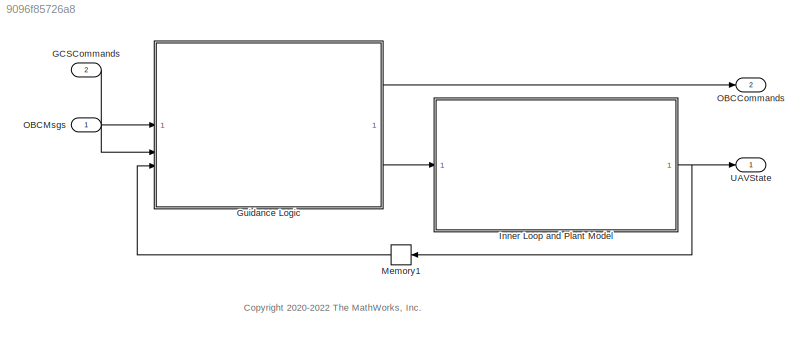
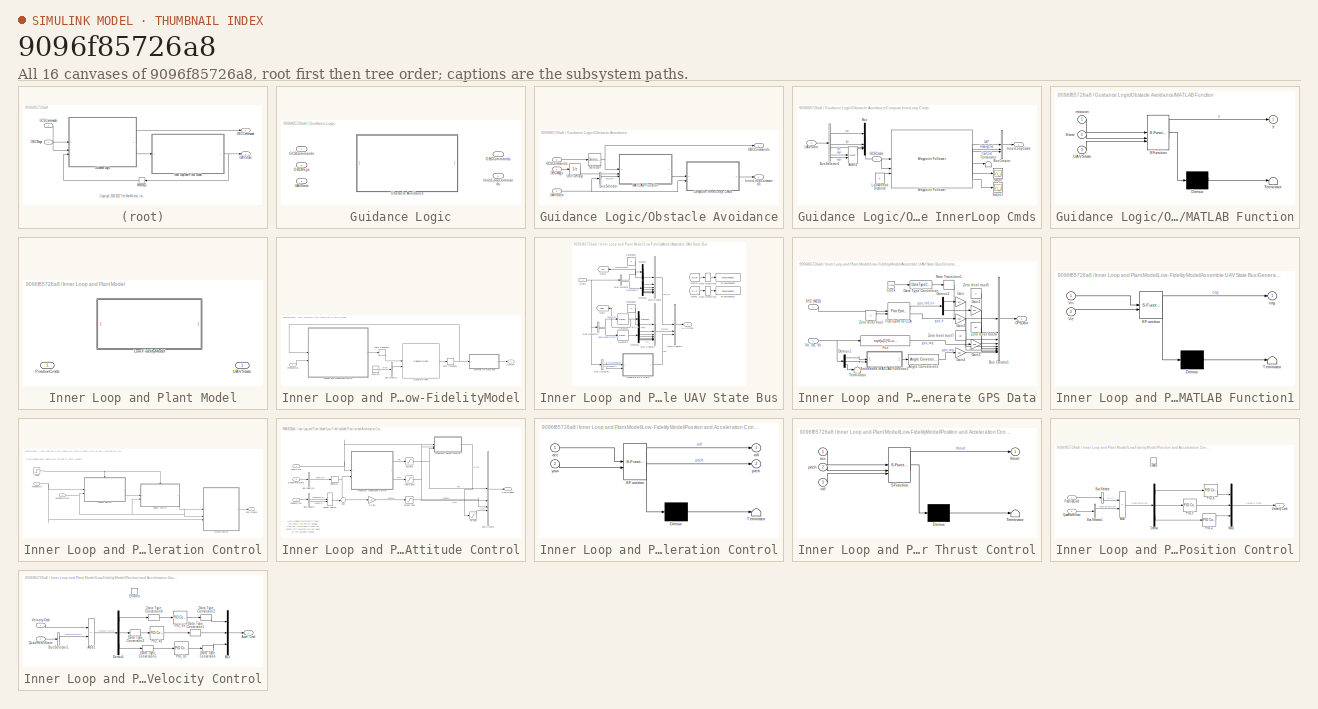
[diagram: thumbnail index - all 16 canvases of the model, root first then tree order]
MODEL slx_9096f85726a8
KIND model
CONFIG AbsTol = auto
CONFIG EnableMultiTasking = on
CONFIG FixedStep = 0.005
CONFIG MaxStep = auto
CONFIG MinStep = auto
CONFIG RelTol = 1e-3
CONFIG SampleTimeConstraint = Unconstrained
CONFIG SolverName = VariableStepAuto
CONFIG StartTime = 0.0
CONFIG StopTime = 200
BLOCK [Inport] GCSCommands
  BusOutputAsStruct = on
  OutDataTypeStr = Bus: uavPathManagerBus
  Port = 2
  PortDimensions = 42
  SampleTime = UAVSampleTime*4
  SamplingMode = Sample based
  SignalType = real
BLOCK [SubSystem] Guidance Logic
  AllowZeroVariantControls = on
  Variant = on
BLOCK [Inport] Guidance Logic/GCSCommands
BLOCK [Outport] Guidance Logic/InnerLoopCommands
  Port = 2
BLOCK [Outport] Guidance Logic/OBCCommands
  BusOutputAsStruct = on
  SampleTime = 0.005
BLOCK [Inport] Guidance Logic/OBCMsgs
  Port = 2
BLOCK [SubSystem] Guidance Logic/Obstacle Avoidance
  SystemSampleTime = 0.005*4
  TreatAsAtomicUnit = on
  VariantControl = guidanceType ==2
BLOCK [BusSelector] Guidance Logic/Obstacle Avoidance/Bus Selector
  NameLocation = top
  OutputSignals = pos_vel
BLOCK [SubSystem] Guidance Logic/Obstacle Avoidance/Compute InnerLoop Cmds
  TreatAsAtomicUnit = on
BLOCK [Trigonometry] Guidance Logic/Obstacle Avoidance/Compute InnerLoop Cmds/Atan2
  Operator = atan2
BLOCK [BusCreator] Guidance Logic/Obstacle Avoidance/Compute InnerLoop Cmds/Bus Creator
  DisplayOption = bar
  InheritFromInputs = on
  Inputs = 3
  NonVirtualBus = on
  OutDataTypeStr = Bus: innerLoopCmdsBus
BLOCK [BusSelector] Guidance Logic/Obstacle Avoidance/Compute InnerLoop Cmds/Bus Selector1
  NameLocation = top
  OutputSignals = pos_vel.x,pos_vel.y,pos_vel.z,pos_vel.vy,pos_vel.vx
BLOCK [Inport] Guidance Logic/Obstacle Avoidance/Compute InnerLoop Cmds/GCSCmds
BLOCK [Outport] Guidance Logic/Obstacle Avoidance/Compute InnerLoop Cmds/InnerLoopCmds
  OutDataTypeStr = Bus: innerLoopCmdsBus
BLOCK [Constant] Guidance Logic/Obstacle Avoidance/Compute InnerLoop Cmds/Lookahead Distance
  OutDataTypeStr = single
  Value = 5
BLOCK [Mux] Guidance Logic/Obstacle Avoidance/Compute InnerLoop Cmds/Mux
  DisplayOption = bar
BLOCK [Scope] Guidance Logic/Obstacle Avoidance/Compute InnerLoop Cmds/Scope
  Floating = off
  NumInputPorts = 1
  ScopeSpecificationString = Simulink.scopes.TimeScopeBlockCfg('CurrentConfiguration', extmgr.ConfigurationSet(extmgr.Configuration('Core','General UI',true),extmgr.Configuration('Core','Source UI',true),extmgr.Configuration('Sources','WiredSimulink',true),extmgr.Configuration('Visuals','Time Domain',true,'SerializedDisplays',{struct('MinYLimReal','-1.3181','MaxYLimReal','14.08417','YLabelReal','','MinYLimMag','0.00000','MaxY...<+1376ch>
BLOCK [Scope] Guidance Logic/Obstacle Avoidance/Compute InnerLoop Cmds/Scope1
  Floating = off
  NumInputPorts = 1
  ScopeSpecificationString = Simulink.scopes.TimeScopeBlockCfg('CurrentConfiguration', extmgr.ConfigurationSet(extmgr.Configuration('Core','General UI',true),extmgr.Configuration('Core','Source UI',true),extmgr.Configuration('Sources','WiredSimulink',true,'DataLoggingVariableName','ScopeData1'),extmgr.Configuration('Visuals','Time Domain',true,'SerializedDisplays',{struct('MinYLimReal','-1.45913','MaxYLimReal','14.08434','YLa...<+1436ch>
BLOCK [Terminator] Guidance Logic/Obstacle Avoidance/Compute InnerLoop Cmds/Terminator
BLOCK [Inport] Guidance Logic/Obstacle Avoidance/Compute InnerLoop Cmds/UAVState
  Port = 2
BLOCK [Reference] Guidance Logic/Obstacle Avoidance/Compute InnerLoop Cmds/Waypoint Follower  REF=uavalgslib/Waypoint Follower
  SourceBlock = uavalgslib/Waypoint Follower
  SourceType = uav.sluav.internal.system.WaypointFollower
BLOCK [Inport] Guidance Logic/Obstacle Avoidance/GCSCommands
BLOCK [Outport] Guidance Logic/Obstacle Avoidance/InnerLoopCommands
BLOCK [SubSystem] Guidance Logic/Obstacle Avoidance/MATLAB Function
  ErrorFcn = Stateflow.Translate.translate
  PermitHierarchicalResolution = ExplicitOnly
  SFBlockType = MATLAB Function
  TreatAsAtomicUnit = on
BLOCK [Demux] Guidance Logic/Obstacle Avoidance/MATLAB Function/ Demux 
  Outputs = 1
BLOCK [S-Function] Guidance Logic/Obstacle Avoidance/MATLAB Function/ SFunction 
  EnableBusSupport = on
  FunctionName = sf_sfun
  PortCounts = [3 2]
  SFcnIsStateOwnerBlock = off
  SFunctionDeploymentMode = off
  Tag = Stateflow S-Function 9
BLOCK [Terminator] Guidance Logic/Obstacle Avoidance/MATLAB Function/ Terminator 
BLOCK [Inport] Guidance Logic/Obstacle Avoidance/MATLAB Function/Steer
  Port = 2
BLOCK [Inport] Guidance Logic/Obstacle Avoidance/MATLAB Function/UAVState
  Port = 3
BLOCK [Inport] Guidance Logic/Obstacle Avoidance/MATLAB Function/mission
BLOCK [Outport] Guidance Logic/Obstacle Avoidance/MATLAB Function/y
BLOCK [Outport] Guidance Logic/Obstacle Avoidance/OBCCommands
  BusOutputAsStruct = on
  Port = 2
BLOCK [Inport] Guidance Logic/Obstacle Avoidance/OBCMsgs
  Port = 2
BLOCK [Selector] Guidance Logic/Obstacle Avoidance/Selector
  IndexOptions = Index vector (dialog)
  Indices = [1 2]
  InputPortWidth = 42
  OutputSizes = 1
BLOCK [Inport] Guidance Logic/Obstacle Avoidance/UAVState
  Port = 3
BLOCK [UnitDelay] Guidance Logic/Obstacle Avoidance/Unit Delay1
  HasFrameUpgradeWarning = on
  InitialCondition = single(0)
  SampleTime = -1
BLOCK [Inport] Guidance Logic/UAVState
  Port = 3
BLOCK [SubSystem] Inner Loop and Plant Model
  Variant = on
BLOCK [SubSystem] Inner Loop and Plant Model/Low-FidelityModel
  VariantControl = plantModelFi ==0
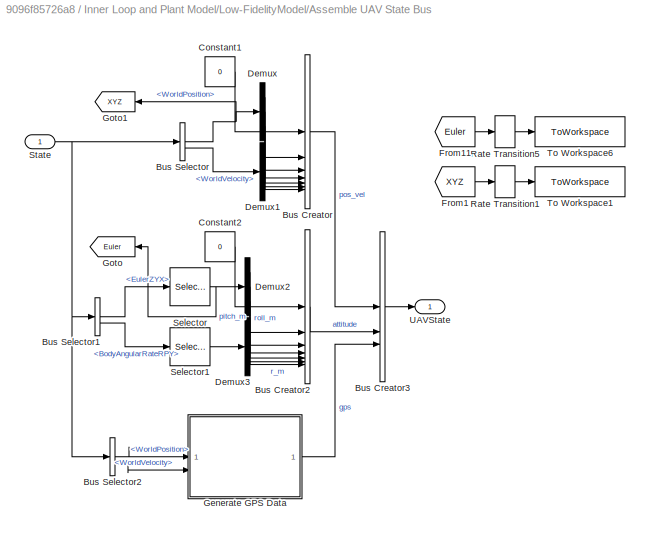
BLOCK [SubSystem] Inner Loop and Plant Model/Low-FidelityModel/Assemble UAV State Bus
BLOCK [BusCreator] Inner Loop and Plant Model/Low-FidelityModel/Assemble UAV State Bus/Bus Creator
  DisplayOption = bar
  InheritFromInputs = off
  Inputs = 7
  OutDataTypeStr = Bus: local_position_ned
BLOCK [BusCreator] Inner Loop and Plant Model/Low-FidelityModel/Assemble UAV State Bus/Bus Creator2
  DisplayOption = bar
  InheritFromInputs = off
  Inputs = 7
  OutDataTypeStr = Bus: attitudeBus
BLOCK [BusCreator] Inner Loop and Plant Model/Low-FidelityModel/Assemble UAV State Bus/Bus Creator3
  DisplayOption = bar
  InheritFromInputs = off
  Inputs = 3
  OutDataTypeStr = Bus: uavStateBus
BLOCK [BusSelector] Inner Loop and Plant Model/Low-FidelityModel/Assemble UAV State Bus/Bus Selector
  OutputSignals = WorldPosition,WorldVelocity
BLOCK [BusSelector] Inner Loop and Plant Model/Low-FidelityModel/Assemble UAV State Bus/Bus Selector1
  OutputSignals = EulerZYX,BodyAngularRateRPY
BLOCK [BusSelector] Inner Loop and Plant Model/Low-FidelityModel/Assemble UAV State Bus/Bus Selector2
  OutputSignals = WorldPosition,WorldVelocity
BLOCK [Constant] Inner Loop and Plant Model/Low-FidelityModel/Assemble UAV State Bus/Constant1
  OutDataTypeStr = uint32
  Value = 0
BLOCK [Constant] Inner Loop and Plant Model/Low-FidelityModel/Assemble UAV State Bus/Constant2
  OutDataTypeStr = uint32
  Value = 0
BLOCK [Demux] Inner Loop and Plant Model/Low-FidelityModel/Assemble UAV State Bus/Demux
  Outputs = 3
BLOCK [Demux] Inner Loop and Plant Model/Low-FidelityModel/Assemble UAV State Bus/Demux1
  Outputs = 3
BLOCK [Demux] Inner Loop and Plant Model/Low-FidelityModel/Assemble UAV State Bus/Demux2
  Outputs = 3
BLOCK [Demux] Inner Loop and Plant Model/Low-FidelityModel/Assemble UAV State Bus/Demux3
  Outputs = 3
BLOCK [From] Inner Loop and Plant Model/Low-FidelityModel/Assemble UAV State Bus/From1
  Commented = on
  GotoTag = XYZ
BLOCK [From] Inner Loop and Plant Model/Low-FidelityModel/Assemble UAV State Bus/From11
  Commented = on
  GotoTag = Euler
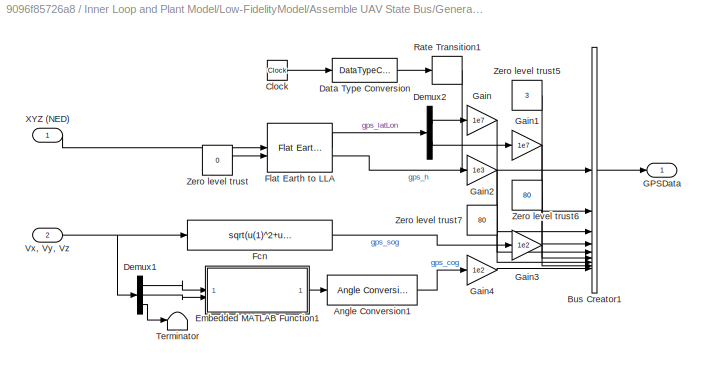
BLOCK [SubSystem] Inner Loop and Plant Model/Low-FidelityModel/Assemble UAV State Bus/Generate GPS Data
BLOCK [Reference] Inner Loop and Plant Model/Low-FidelityModel/Assemble UAV State Bus/Generate GPS Data/Angle Conversion1  REF=aerolibconvert2/Angle Conversion
  SourceBlock = aerolibconvert2/Angle Conversion
  SourceType = Angle Conversion
BLOCK [BusCreator] Inner Loop and Plant Model/Low-FidelityModel/Assemble UAV State Bus/Generate GPS Data/Bus Creator1
  DisplayOption = bar
  InheritFromInputs = off
  Inputs = 9
  NonVirtualBus = on
  OutDataTypeStr = Bus: gps_raw_int
BLOCK [Clock] Inner Loop and Plant Model/Low-FidelityModel/Assemble UAV State Bus/Generate GPS Data/Clock
  AttributesFormatString = Decimation: %<Decimation>
  Decimation = 1
BLOCK [DataTypeConversion] Inner Loop and Plant Model/Low-FidelityModel/Assemble UAV State Bus/Generate GPS Data/Data Type Conversion
  OutDataTypeStr = uint32
  RndMeth = Floor
  SaturateOnIntegerOverflow = off
BLOCK [Demux] Inner Loop and Plant Model/Low-FidelityModel/Assemble UAV State Bus/Generate GPS Data/Demux1
  Outputs = 3
BLOCK [Demux] Inner Loop and Plant Model/Low-FidelityModel/Assemble UAV State Bus/Generate GPS Data/Demux2
  Outputs = 2
BLOCK [SubSystem] Inner Loop and Plant Model/Low-FidelityModel/Assemble UAV State Bus/Generate GPS Data/Embedded MATLAB Function1
  ErrorFcn = Stateflow.Translate.translate
  PermitHierarchicalResolution = ExplicitOnly
  SFBlockType = MATLAB Function
  TreatAsAtomicUnit = on
BLOCK [Demux] Inner Loop and Plant Model/Low-FidelityModel/Assemble UAV State Bus/Generate GPS Data/Embedded MATLAB Function1/ Demux 
  Outputs = 1
BLOCK [S-Function] Inner Loop and Plant Model/Low-FidelityModel/Assemble UAV State Bus/Generate GPS Data/Embedded MATLAB Function1/ SFunction 
  EnableBusSupport = on
  FunctionName = sf_sfun
  PortCounts = [2 2]
  SFcnIsStateOwnerBlock = off
  SFunctionDeploymentMode = off
  Tag = Stateflow S-Function 8
BLOCK [Terminator] Inner Loop and Plant Model/Low-FidelityModel/Assemble UAV State Bus/Generate GPS Data/Embedded MATLAB Function1/ Terminator 
BLOCK [Inport] Inner Loop and Plant Model/Low-FidelityModel/Assemble UAV State Bus/Generate GPS Data/Embedded MATLAB Function1/Ve
  Port = 2
BLOCK [Inport] Inner Loop and Plant Model/Low-FidelityModel/Assemble UAV State Bus/Generate GPS Data/Embedded MATLAB Function1/Vn
BLOCK [Outport] Inner Loop and Plant Model/Low-FidelityModel/Assemble UAV State Bus/Generate GPS Data/Embedded MATLAB Function1/cog
  VectorParamsAs1DForOutWhenUnconnected = off
BLOCK [Fcn] Inner Loop and Plant Model/Low-FidelityModel/Assemble UAV State Bus/Generate GPS Data/Fcn
  Expr = sqrt(u(1)^2+u(2)^2+u(3)^2)
BLOCK [Reference] Inner Loop and Plant Model/Low-FidelityModel/Assemble UAV State Bus/Generate GPS Data/Flat Earth to LLA  REF=aerolibtransform2/Flat Earth to LLA
  SourceBlock = aerolibtransform2/Flat Earth to LLA
  SourceType = Flat Earth to LLA
BLOCK [Outport] Inner Loop and Plant Model/Low-FidelityModel/Assemble UAV State Bus/Generate GPS Data/GPSData
  VectorParamsAs1DForOutWhenUnconnected = off
BLOCK [Gain] Inner Loop and Plant Model/Low-FidelityModel/Assemble UAV State Bus/Generate GPS Data/Gain
  Gain = 1e7
  OutDataTypeStr = int32
BLOCK [Gain] Inner Loop and Plant Model/Low-FidelityModel/Assemble UAV State Bus/Generate GPS Data/Gain1
  Gain = 1e7
  OutDataTypeStr = int32
BLOCK [Gain] Inner Loop and Plant Model/Low-FidelityModel/Assemble UAV State Bus/Generate GPS Data/Gain2
  Gain = 1e3
  OutDataTypeStr = int32
BLOCK [Gain] Inner Loop and Plant Model/Low-FidelityModel/Assemble UAV State Bus/Generate GPS Data/Gain3
  Gain = 1e2
  OutDataTypeStr = uint16
BLOCK [Gain] Inner Loop and Plant Model/Low-FidelityModel/Assemble UAV State Bus/Generate GPS Data/Gain4
  Gain = 1e2
  OutDataTypeStr = uint16
BLOCK [RateTransition] Inner Loop and Plant Model/Low-FidelityModel/Assemble UAV State Bus/Generate GPS Data/Rate Transition1
  OutPortSampleTime = 0.005
BLOCK [Terminator] Inner Loop and Plant Model/Low-FidelityModel/Assemble UAV State Bus/Generate GPS Data/Terminator
BLOCK [Inport] Inner Loop and Plant Model/Low-FidelityModel/Assemble UAV State Bus/Generate GPS Data/Vx, Vy, Vz
  Port = 2
BLOCK [Inport] Inner Loop and Plant Model/Low-FidelityModel/Assemble UAV State Bus/Generate GPS Data/XYZ (NED)
BLOCK [Constant] Inner Loop and Plant Model/Low-FidelityModel/Assemble UAV State Bus/Generate GPS Data/Zero level trust
  AttributesFormatString = %<Value>
  Value = 0
BLOCK [Constant] Inner Loop and Plant Model/Low-FidelityModel/Assemble UAV State Bus/Generate GPS Data/Zero level trust5
  AttributesFormatString = %<Value>
  OutDataTypeStr = uint8
  Value = 3
BLOCK [Constant] Inner Loop and Plant Model/Low-FidelityModel/Assemble UAV State Bus/Generate GPS Data/Zero level trust6
  AttributesFormatString = %<Value>
  OutDataTypeStr = uint16
  Value = 80
BLOCK [Constant] Inner Loop and Plant Model/Low-FidelityModel/Assemble UAV State Bus/Generate GPS Data/Zero level trust7
  AttributesFormatString = %<Value>
  OutDataTypeStr = uint16
  Value = 80
BLOCK [Goto] Inner Loop and Plant Model/Low-FidelityModel/Assemble UAV State Bus/Goto
  Commented = on
  GotoTag = Euler
BLOCK [Goto] Inner Loop and Plant Model/Low-FidelityModel/Assemble UAV State Bus/Goto1
  Commented = on
  GotoTag = XYZ
BLOCK [RateTransition] Inner Loop and Plant Model/Low-FidelityModel/Assemble UAV State Bus/Rate Transition1
  Commented = on
  OutPortSampleTime = UAVSampleTime
BLOCK [RateTransition] Inner Loop and Plant Model/Low-FidelityModel/Assemble UAV State Bus/Rate Transition5
  Commented = on
  OutPortSampleTime = UAVSampleTime
BLOCK [Selector] Inner Loop and Plant Model/Low-FidelityModel/Assemble UAV State Bus/Selector
  IndexOptions = Index vector (dialog)
  Indices = [3 2 1]
  InputPortWidth = 3
  OutputSizes = 1
BLOCK [Selector] Inner Loop and Plant Model/Low-FidelityModel/Assemble UAV State Bus/Selector1
  IndexOptions = Index vector (dialog)
  Indices = [3 2 1]
  InputPortWidth = 3
  OutputSizes = 1
BLOCK [Inport] Inner Loop and Plant Model/Low-FidelityModel/Assemble UAV State Bus/State
BLOCK [ToWorkspace] Inner Loop and Plant Model/Low-FidelityModel/Assemble UAV State Bus/To Workspace1
  Commented = on
  FixptAsFi = on
  MaxDataPoints = inf
  SampleTime = -1
  SaveFormat = Timeseries
  VariableName = XYZ
BLOCK [ToWorkspace] Inner Loop and Plant Model/Low-FidelityModel/Assemble UAV State Bus/To Workspace6
  Commented = on
  FixptAsFi = on
  MaxDataPoints = inf
  SampleTime = -1
  SaveFormat = Timeseries
  VariableName = euler
BLOCK [Outport] Inner Loop and Plant Model/Low-FidelityModel/Assemble UAV State Bus/UAVState
  OutDataTypeStr = Bus: uavStateBus
BLOCK [BusCreator] Inner Loop and Plant Model/Low-FidelityModel/Bus Creator1
  DisplayOption = bar
  InheritFromInputs = on
  Inputs = 1
  NonVirtualBus = on
  OutDataTypeStr = Bus: uavGuidanceEnvironmentBus
BLOCK [Constant] Inner Loop and Plant Model/Low-FidelityModel/Constant
  AttributesFormatString = %<Value>
  OutDataTypeStr = single
  Value = Gravity
BLOCK [SubSystem] Inner Loop and Plant Model/Low-FidelityModel/Position and Acceleration Control
BLOCK [SubSystem] Inner Loop and Plant Model/Low-FidelityModel/Position and Acceleration Control/Attitude Control
BLOCK [Inport] Inner Loop and Plant Model/Low-FidelityModel/Position and Acceleration Control/Attitude Control/Accel Cmd
BLOCK [BusCreator] Inner Loop and Plant Model/Low-FidelityModel/Position and Acceleration Control/Attitude Control/Bus Creator
  DisplayOption = bar
  InheritFromInputs = off
  Inputs = 4
  NonVirtualBus = on
  OutDataTypeStr = Bus: uavGuidanceControlBus
BLOCK [BusSelector] Inner Loop and Plant Model/Low-FidelityModel/Position and Acceleration Control/Attitude Control/Bus Selector
  OutputSignals = HeadingCmd,YawCmd
BLOCK [BusSelector] Inner Loop and Plant Model/Low-FidelityModel/Position and Acceleration Control/Attitude Control/Bus Selector1
  NameLocation = top
  OutputSignals = EulerZYX
BLOCK [Outport] Inner Loop and Plant Model/Low-FidelityModel/Position and Acceleration Control/Attitude Control/Control Signal
BLOCK [SubSystem] Inner Loop and Plant Model/Low-FidelityModel/Position and Acceleration Control/Attitude Control/Multirotor Acceleration Control
  ErrorFcn = Stateflow.Translate.translate
  PermitHierarchicalResolution = ExplicitOnly
  SFBlockType = MATLAB Function
  TreatAsAtomicUnit = on
BLOCK [Demux] Inner Loop and Plant Model/Low-FidelityModel/Position and Acceleration Control/Attitude Control/Multirotor Acceleration Control/ Demux 
  Outputs = 1
BLOCK [S-Function] Inner Loop and Plant Model/Low-FidelityModel/Position and Acceleration Control/Attitude Control/Multirotor Acceleration Control/ SFunction 
  EnableBusSupport = on
  FunctionName = sf_sfun
  Parameters = Gravity
  PortCounts = [2 3]
  SFcnIsStateOwnerBlock = off
  SFunctionDeploymentMode = off
  Tag = Stateflow S-Function 11
BLOCK [Terminator] Inner Loop and Plant Model/Low-FidelityModel/Position and Acceleration Control/Attitude Control/Multirotor Acceleration Control/ Terminator 
BLOCK [Inport] Inner Loop and Plant Model/Low-FidelityModel/Position and Acceleration Control/Attitude Control/Multirotor Acceleration Control/acc
BLOCK [Outport] Inner Loop and Plant Model/Low-FidelityModel/Position and Acceleration Control/Attitude Control/Multirotor Acceleration Control/pitch
  Port = 2
  VectorParamsAs1DForOutWhenUnconnected = off
BLOCK [Outport] Inner Loop and Plant Model/Low-FidelityModel/Position and Acceleration Control/Attitude Control/Multirotor Acceleration Control/roll
  VectorParamsAs1DForOutWhenUnconnected = off
BLOCK [Inport] Inner Loop and Plant Model/Low-FidelityModel/Position and Acceleration Control/Attitude Control/Multirotor Acceleration Control/yaw
  Port = 2
BLOCK [SubSystem] Inner Loop and Plant Model/Low-FidelityModel/Position and Acceleration Control/Attitude Control/Multirotor Thrust Control
  ErrorFcn = Stateflow.Translate.translate
  PermitHierarchicalResolution = ExplicitOnly
  SFBlockType = MATLAB Function
  TreatAsAtomicUnit = on
BLOCK [Demux] Inner Loop and Plant Model/Low-FidelityModel/Position and Acceleration Control/Attitude Control/Multirotor Thrust Control/ Demux 
  Outputs = 1
BLOCK [S-Function] Inner Loop and Plant Model/Low-FidelityModel/Position and Acceleration Control/Attitude Control/Multirotor Thrust Control/ SFunction 
  EnableBusSupport = on
  FunctionName = sf_sfun
  Parameters = DroneMass,Gravity
  PortCounts = [3 2]
  SFcnIsStateOwnerBlock = off
  SFunctionDeploymentMode = off
  Tag = Stateflow S-Function 12
BLOCK [Terminator] Inner Loop and Plant Model/Low-FidelityModel/Position and Acceleration Control/Attitude Control/Multirotor Thrust Control/ Terminator 
BLOCK [Inport] Inner Loop and Plant Model/Low-FidelityModel/Position and Acceleration Control/Attitude Control/Multirotor Thrust Control/acc
BLOCK [Inport] Inner Loop and Plant Model/Low-FidelityModel/Position and Acceleration Control/Attitude Control/Multirotor Thrust Control/pitch
  Port = 2
BLOCK [Inport] Inner Loop and Plant Model/Low-FidelityModel/Position and Acceleration Control/Attitude Control/Multirotor Thrust Control/roll
  Port = 3
BLOCK [Outport] Inner Loop and Plant Model/Low-FidelityModel/Position and Acceleration Control/Attitude Control/Multirotor Thrust Control/thrust
  VectorParamsAs1DForOutWhenUnconnected = off
BLOCK [Gain] Inner Loop and Plant Model/Low-FidelityModel/Position and Acceleration Control/Attitude Control/P Gain
  Gain = 1.1
BLOCK [Inport] Inner Loop and Plant Model/Low-FidelityModel/Position and Acceleration Control/Attitude Control/PositionCmd
  Port = 3
BLOCK [Inport] Inner Loop and Plant Model/Low-FidelityModel/Position and Acceleration Control/Attitude Control/QuadRotorState
  Port = 2
BLOCK [Selector] Inner Loop and Plant Model/Low-FidelityModel/Position and Acceleration Control/Attitude Control/Selector1
  IndexOptions = Index vector (dialog)
  Indices = [1]
  InputPortWidth = 3
  OutputSizes = 1
BLOCK [Sum] Inner Loop and Plant Model/Low-FidelityModel/Position and Acceleration Control/Attitude Control/Sum
  Inputs = -+|
BLOCK [VariantSource] Inner Loop and Plant Model/Low-FidelityModel/Position and Acceleration Control/Attitude Control/Variant Source
BLOCK [Saturate] Inner Loop and Plant Model/Low-FidelityModel/Position and Acceleration Control/Attitude Control/dT Limit
  AttributesFormatString = [%<UpperLimit> %<LowerLimit>]
  LowerLimit = 0
  UpperLimit = 1.2
BLOCK [Saturate] Inner Loop and Plant Model/Low-FidelityModel/Position and Acceleration Control/Attitude Control/phi Limit
  AttributesFormatString = [%<UpperLimit> %<LowerLimit>]
  LowerLimit = -25*pi/180
  UpperLimit = 25*pi/180
BLOCK [Saturate] Inner Loop and Plant Model/Low-FidelityModel/Position and Acceleration Control/Attitude Control/psi_dot Limit
  AttributesFormatString = [%<UpperLimit> %<LowerLimit>]
  LowerLimit = -30*pi/180
  UpperLimit = 30*pi/180
BLOCK [Saturate] Inner Loop and Plant Model/Low-FidelityModel/Position and Acceleration Control/Attitude Control/theta Limit
  AttributesFormatString = [%<UpperLimit> %<LowerLimit>]
  LowerLimit = -25*pi/180
  UpperLimit = 25*pi/180
BLOCK [Outport] Inner Loop and Plant Model/Low-FidelityModel/Position and Acceleration Control/Control Signal
BLOCK [SubSystem] Inner Loop and Plant Model/Low-FidelityModel/Position and Acceleration Control/Position Control
BLOCK [Sum] Inner Loop and Plant Model/Low-FidelityModel/Position and Acceleration Control/Position Control/Add
  IconShape = rectangular
  Inputs = +-
BLOCK [BusSelector] Inner Loop and Plant Model/Low-FidelityModel/Position and Acceleration Control/Position Control/Bus Selector
  OutputSignals = LAP
BLOCK [BusSelector] Inner Loop and Plant Model/Low-FidelityModel/Position and Acceleration Control/Position Control/Bus Selector1
  NameLocation = top
  OutputSignals = WorldPosition
BLOCK [Demux] Inner Loop and Plant Model/Low-FidelityModel/Position and Acceleration Control/Position Control/Demux
  Outputs = 3
BLOCK [EnablePort] Inner Loop and Plant Model/Low-FidelityModel/Position and Acceleration Control/Position Control/Enable
  StatesWhenEnabling = reset
BLOCK [Mux] Inner Loop and Plant Model/Low-FidelityModel/Position and Acceleration Control/Position Control/Mux1
  DisplayOption = bar
  Inputs = 3
BLOCK [Reference] Inner Loop and Plant Model/Low-FidelityModel/Position and Acceleration Control/Position Control/PID_X  REF=slpidlib/PID Controller
  AttributesFormatString = P: %<P>, I: %<I>, D:%<D>
  SourceBlock = slpidlib/PID Controller
  SourceType = PID 1dof
BLOCK [Reference] Inner Loop and Plant Model/Low-FidelityModel/Position and Acceleration Control/Position Control/PID_Y  REF=slpidlib/PID Controller
  AttributesFormatString = P: %<P>, I: %<I>, D:%<D>
  SourceBlock = slpidlib/PID Controller
  SourceType = PID 1dof
BLOCK [Reference] Inner Loop and Plant Model/Low-FidelityModel/Position and Acceleration Control/Position Control/PID_Z  REF=slpidlib/PID Controller
  AttributesFormatString = P: %<P>, I: %<I>, D:%<D>
  SourceBlock = slpidlib/PID Controller
  SourceType = PID 1dof
BLOCK [Inport] Inner Loop and Plant Model/Low-FidelityModel/Position and Acceleration Control/Position Control/PositionCmd
BLOCK [Inport] Inner Loop and Plant Model/Low-FidelityModel/Position and Acceleration Control/Position Control/QuadRotorState
  Port = 2
BLOCK [Outport] Inner Loop and Plant Model/Low-FidelityModel/Position and Acceleration Control/Position Control/Velocity Cmd
BLOCK [Inport] Inner Loop and Plant Model/Low-FidelityModel/Position and Acceleration Control/PositionCmd
  Port = 2
BLOCK [Inport] Inner Loop and Plant Model/Low-FidelityModel/Position and Acceleration Control/QuadRotorState
BLOCK [Step] Inner Loop and Plant Model/Low-FidelityModel/Position and Acceleration Control/Step
  SampleTime = UAVSampleTime
  Time = startFlightTime
BLOCK [SubSystem] Inner Loop and Plant Model/Low-FidelityModel/Position and Acceleration Control/Velocity Control
BLOCK [Outport] Inner Loop and Plant Model/Low-FidelityModel/Position and Acceleration Control/Velocity Control/Accel Cmd
BLOCK [Sum] Inner Loop and Plant Model/Low-FidelityModel/Position and Acceleration Control/Velocity Control/Add1
  IconShape = rectangular
  Inputs = +-
BLOCK [BusSelector] Inner Loop and Plant Model/Low-FidelityModel/Position and Acceleration Control/Velocity Control/Bus Selector1
  NameLocation = top
  OutputSignals = WorldVelocity
BLOCK [DataTypeConversion] Inner Loop and Plant Model/Low-FidelityModel/Position and Acceleration Control/Velocity Control/Data Type Conversion
  OutDataTypeStr = single
  RndMeth = Floor
  SaturateOnIntegerOverflow = off
BLOCK [DataTypeConversion] Inner Loop and Plant Model/Low-FidelityModel/Position and Acceleration Control/Velocity Control/Data Type Conversion1
  OutDataTypeStr = single
  RndMeth = Floor
  SaturateOnIntegerOverflow = off
BLOCK [DataTypeConversion] Inner Loop and Plant Model/Low-FidelityModel/Position and Acceleration Control/Velocity Control/Data Type Conversion2
  OutDataTypeStr = single
  RndMeth = Floor
  SaturateOnIntegerOverflow = off
BLOCK [DataTypeConversion] Inner Loop and Plant Model/Low-FidelityModel/Position and Acceleration Control/Velocity Control/Data Type Conversion3
  OutDataTypeStr = single
  RndMeth = Floor
  SaturateOnIntegerOverflow = off
BLOCK [DataTypeConversion] Inner Loop and Plant Model/Low-FidelityModel/Position and Acceleration Control/Velocity Control/Data Type Conversion4
  OutDataTypeStr = single
  RndMeth = Floor
  SaturateOnIntegerOverflow = off
BLOCK [DataTypeConversion] Inner Loop and Plant Model/Low-FidelityModel/Position and Acceleration Control/Velocity Control/Data Type Conversion5
  OutDataTypeStr = single
  RndMeth = Floor
  SaturateOnIntegerOverflow = off
BLOCK [Demux] Inner Loop and Plant Model/Low-FidelityModel/Position and Acceleration Control/Velocity Control/Demux1
  Outputs = 3
BLOCK [EnablePort] Inner Loop and Plant Model/Low-FidelityModel/Position and Acceleration Control/Velocity Control/Enable
  StatesWhenEnabling = reset
BLOCK [Mux] Inner Loop and Plant Model/Low-FidelityModel/Position and Acceleration Control/Velocity Control/Mux
  DisplayOption = bar
  Inputs = 3
BLOCK [Reference] Inner Loop and Plant Model/Low-FidelityModel/Position and Acceleration Control/Velocity Control/PID_Vx  REF=slpidlib/PID Controller
  AttributesFormatString = P: %<P>, I: %<I>, D:%<D>
  SourceBlock = slpidlib/PID Controller
  SourceType = PID 1dof
BLOCK [Reference] Inner Loop and Plant Model/Low-FidelityModel/Position and Acceleration Control/Velocity Control/PID_Vy  REF=slpidlib/PID Controller
  AttributesFormatString = P: %<P>, I: %<I>, D:%<D>
  SourceBlock = slpidlib/PID Controller
  SourceType = PID 1dof
BLOCK [Reference] Inner Loop and Plant Model/Low-FidelityModel/Position and Acceleration Control/Velocity Control/PID_Vz  REF=slpidlib/PID Controller
  AttributesFormatString = P: %<P>, I: %<I>, D:%<D>
  SourceBlock = slpidlib/PID Controller
  SourceType = PID 1dof
BLOCK [Inport] Inner Loop and Plant Model/Low-FidelityModel/Position and Acceleration Control/Velocity Control/QuadRotorState
  Port = 2
BLOCK [Inport] Inner Loop and Plant Model/Low-FidelityModel/Position and Acceleration Control/Velocity Control/Velocity Cmd
BLOCK [Inport] Inner Loop and Plant Model/Low-FidelityModel/PositionCmds
BLOCK [Reference] Inner Loop and Plant Model/Low-FidelityModel/Quadrotor Plant  REF=uavalgslib/Guidance Model
  SourceBlock = uavalgslib/Guidance Model
  SourceType = Guidance Model
BLOCK [RateTransition] Inner Loop and Plant Model/Low-FidelityModel/Rate Transition1
  OutPortSampleTime = UAVSampleTime
BLOCK [RateTransition] Inner Loop and Plant Model/Low-FidelityModel/Rate Transition2
  OutPortSampleTime = UAVSampleTime
BLOCK [Outport] Inner Loop and Plant Model/Low-FidelityModel/UAVState
  OutDataTypeStr = Bus: uavStateBus
BLOCK [Inport] Inner Loop and Plant Model/PositionCmds
BLOCK [Outport] Inner Loop and Plant Model/UAVState
BLOCK [Memory] Memory1
  InheritSampleTime = on
BLOCK [Outport] OBCCommands
  BusOutputAsStruct = on
  OutDataTypeStr = Bus: uavPathManagerBus
  Port = 2
  PortDimensions = 2
  SampleTime = 0.005
BLOCK [Inport] OBCMsgs
  OutDataTypeStr = single
  SampleTime = UAVSampleTime*4
  SamplingMode = Sample based
  SignalType = real
BLOCK [Outport] UAVState
  BusOutputAsStruct = on
  OutDataTypeStr = Bus: uavStateBus
ANNOTATION (root): <copyright redacted>
ANNOTATION Inner Loop and Plant Model/Low-FidelityModel/Position and Acceleration Control: To be replaced with a signal from the GCS to "Start Mission"
ANNOTATION Inner Loop and Plant Model/Low-FidelityModel/Position and Acceleration Control/Attitude Control: Use Heading Command to have the copter turn into its heading. Use Yaw Command to have the copter turn towards the yaw given by the Waypoint Mission
LINE GCSCommands:1 -> Guidance Logic:1
LINE Guidance Logic/Obstacle Avoidance/Bus Selector:1 -> Guidance Logic/Obstacle Avoidance/MATLAB Function:3
LINE Guidance Logic/Obstacle Avoidance/Compute InnerLoop Cmds/Atan2:1 -> Guidance Logic/Obstacle Avoidance/Compute InnerLoop Cmds/Mux:4
LINE Guidance Logic/Obstacle Avoidance/Compute InnerLoop Cmds/Bus Creator:1 -> Guidance Logic/Obstacle Avoidance/Compute InnerLoop Cmds/InnerLoopCmds:1
LINE Guidance Logic/Obstacle Avoidance/Compute InnerLoop Cmds/Bus Selector1:1 -> Guidance Logic/Obstacle Avoidance/Compute InnerLoop Cmds/Mux:1
LINE Guidance Logic/Obstacle Avoidance/Compute InnerLoop Cmds/Bus Selector1:2 -> Guidance Logic/Obstacle Avoidance/Compute InnerLoop Cmds/Mux:2
LINE Guidance Logic/Obstacle Avoidance/Compute InnerLoop Cmds/Bus Selector1:3 -> Guidance Logic/Obstacle Avoidance/Compute InnerLoop Cmds/Mux:3
LINE Guidance Logic/Obstacle Avoidance/Compute InnerLoop Cmds/Bus Selector1:4 -> Guidance Logic/Obstacle Avoidance/Compute InnerLoop Cmds/Atan2:1
LINE Guidance Logic/Obstacle Avoidance/Compute InnerLoop Cmds/Bus Selector1:5 -> Guidance Logic/Obstacle Avoidance/Compute InnerLoop Cmds/Atan2:2
LINE Guidance Logic/Obstacle Avoidance/Compute InnerLoop Cmds/GCSCmds:1 -> Guidance Logic/Obstacle Avoidance/Compute InnerLoop Cmds/Waypoint Follower:2
LINE Guidance Logic/Obstacle Avoidance/Compute InnerLoop Cmds/Lookahead Distance:1 -> Guidance Logic/Obstacle Avoidance/Compute InnerLoop Cmds/Waypoint Follower:3
LINE Guidance Logic/Obstacle Avoidance/Compute InnerLoop Cmds/Mux:1 -> Guidance Logic/Obstacle Avoidance/Compute InnerLoop Cmds/Waypoint Follower:1
LINE Guidance Logic/Obstacle Avoidance/Compute InnerLoop Cmds/UAVState:1 -> Guidance Logic/Obstacle Avoidance/Compute InnerLoop Cmds/Bus Selector1:1
LINE Guidance Logic/Obstacle Avoidance/Compute InnerLoop Cmds/Waypoint Follower:1 -> Guidance Logic/Obstacle Avoidance/Compute InnerLoop Cmds/Bus Creator:1
LINE Guidance Logic/Obstacle Avoidance/Compute InnerLoop Cmds/Waypoint Follower:2 -> Guidance Logic/Obstacle Avoidance/Compute InnerLoop Cmds/Bus Creator:2
LINE Guidance Logic/Obstacle Avoidance/Compute InnerLoop Cmds/Waypoint Follower:3 -> Guidance Logic/Obstacle Avoidance/Compute InnerLoop Cmds/Bus Creator:3
LINE Guidance Logic/Obstacle Avoidance/Compute InnerLoop Cmds/Waypoint Follower:4 -> Guidance Logic/Obstacle Avoidance/Compute InnerLoop Cmds/Terminator:1
LINE Guidance Logic/Obstacle Avoidance/Compute InnerLoop Cmds/Waypoint Follower:5 -> Guidance Logic/Obstacle Avoidance/Compute InnerLoop Cmds/Scope:1
LINE Guidance Logic/Obstacle Avoidance/Compute InnerLoop Cmds/Waypoint Follower:6 -> Guidance Logic/Obstacle Avoidance/Compute InnerLoop Cmds/Scope1:1
LINE Guidance Logic/Obstacle Avoidance/Compute InnerLoop Cmds:1 -> Guidance Logic/Obstacle Avoidance/InnerLoopCommands:1
LINE Guidance Logic/Obstacle Avoidance/GCSCommands:1 -> Guidance Logic/Obstacle Avoidance/Selector:1
LINE Guidance Logic/Obstacle Avoidance/MATLAB Function:1 -> Guidance Logic/Obstacle Avoidance/Compute InnerLoop Cmds:1
LINE Guidance Logic/Obstacle Avoidance/OBCMsgs:1 -> Guidance Logic/Obstacle Avoidance/Unit Delay1:1
NET Guidance Logic/Obstacle Avoidance/Selector:1 -> Guidance Logic/Obstacle Avoidance/MATLAB Function:1, Guidance Logic/Obstacle Avoidance/OBCCommands:1
NET Guidance Logic/Obstacle Avoidance/UAVState:1 -> Guidance Logic/Obstacle Avoidance/Bus Selector:1, Guidance Logic/Obstacle Avoidance/Compute InnerLoop Cmds:2
LINE Guidance Logic/Obstacle Avoidance/Unit Delay1:1 -> Guidance Logic/Obstacle Avoidance/MATLAB Function:2
LINE Guidance Logic:1 -> OBCCommands:1
LINE Guidance Logic:2 -> Inner Loop and Plant Model:1
LINE Inner Loop and Plant Model/Low-FidelityModel/Assemble UAV State Bus/Bus Creator2:1 -> Inner Loop and Plant Model/Low-FidelityModel/Assemble UAV State Bus/Bus Creator3:2
LINE Inner Loop and Plant Model/Low-FidelityModel/Assemble UAV State Bus/Bus Creator3:1 -> Inner Loop and Plant Model/Low-FidelityModel/Assemble UAV State Bus/UAVState:1
LINE Inner Loop and Plant Model/Low-FidelityModel/Assemble UAV State Bus/Bus Creator:1 -> Inner Loop and Plant Model/Low-FidelityModel/Assemble UAV State Bus/Bus Creator3:1
LINE Inner Loop and Plant Model/Low-FidelityModel/Assemble UAV State Bus/Bus Selector1:1 -> Inner Loop and Plant Model/Low-FidelityModel/Assemble UAV State Bus/Selector:1
LINE Inner Loop and Plant Model/Low-FidelityModel/Assemble UAV State Bus/Bus Selector1:2 -> Inner Loop and Plant Model/Low-FidelityModel/Assemble UAV State Bus/Selector1:1
LINE Inner Loop and Plant Model/Low-FidelityModel/Assemble UAV State Bus/Bus Selector2:1 -> Inner Loop and Plant Model/Low-FidelityModel/Assemble UAV State Bus/Generate GPS Data:1
LINE Inner Loop and Plant Model/Low-FidelityModel/Assemble UAV State Bus/Bus Selector2:2 -> Inner Loop and Plant Model/Low-FidelityModel/Assemble UAV State Bus/Generate GPS Data:2
NET Inner Loop and Plant Model/Low-FidelityModel/Assemble UAV State Bus/Bus Selector:1 -> Inner Loop and Plant Model/Low-FidelityModel/Assemble UAV State Bus/Demux:1, Inner Loop and Plant Model/Low-FidelityModel/Assemble UAV State Bus/Goto1:1
LINE Inner Loop and Plant Model/Low-FidelityModel/Assemble UAV State Bus/Bus Selector:2 -> Inner Loop and Plant Model/Low-FidelityModel/Assemble UAV State Bus/Demux1:1
LINE Inner Loop and Plant Model/Low-FidelityModel/Assemble UAV State Bus/Constant1:1 -> Inner Loop and Plant Model/Low-FidelityModel/Assemble UAV State Bus/Bus Creator:1
LINE Inner Loop and Plant Model/Low-FidelityModel/Assemble UAV State Bus/Constant2:1 -> Inner Loop and Plant Model/Low-FidelityModel/Assemble UAV State Bus/Bus Creator2:1
LINE Inner Loop and Plant Model/Low-FidelityModel/Assemble UAV State Bus/Demux1:1 -> Inner Loop and Plant Model/Low-FidelityModel/Assemble UAV State Bus/Bus Creator:5
LINE Inner Loop and Plant Model/Low-FidelityModel/Assemble UAV State Bus/Demux1:2 -> Inner Loop and Plant Model/Low-FidelityModel/Assemble UAV State Bus/Bus Creator:6
LINE Inner Loop and Plant Model/Low-FidelityModel/Assemble UAV State Bus/Demux1:3 -> Inner Loop and Plant Model/Low-FidelityModel/Assemble UAV State Bus/Bus Creator:7
LINE Inner Loop and Plant Model/Low-FidelityModel/Assemble UAV State Bus/Demux2:1 -> Inner Loop and Plant Model/Low-FidelityModel/Assemble UAV State Bus/Bus Creator2:2
LINE Inner Loop and Plant Model/Low-FidelityModel/Assemble UAV State Bus/Demux2:2 -> Inner Loop and Plant Model/Low-FidelityModel/Assemble UAV State Bus/Bus Creator2:3
LINE Inner Loop and Plant Model/Low-FidelityModel/Assemble UAV State Bus/Demux2:3 -> Inner Loop and Plant Model/Low-FidelityModel/Assemble UAV State Bus/Bus Creator2:4
LINE Inner Loop and Plant Model/Low-FidelityModel/Assemble UAV State Bus/Demux3:1 -> Inner Loop and Plant Model/Low-FidelityModel/Assemble UAV State Bus/Bus Creator2:5
LINE Inner Loop and Plant Model/Low-FidelityModel/Assemble UAV State Bus/Demux3:2 -> Inner Loop and Plant Model/Low-FidelityModel/Assemble UAV State Bus/Bus Creator2:6
LINE Inner Loop and Plant Model/Low-FidelityModel/Assemble UAV State Bus/Demux3:3 -> Inner Loop and Plant Model/Low-FidelityModel/Assemble UAV State Bus/Bus Creator2:7
LINE Inner Loop and Plant Model/Low-FidelityModel/Assemble UAV State Bus/Demux:1 -> Inner Loop and Plant Model/Low-FidelityModel/Assemble UAV State Bus/Bus Creator:2
LINE Inner Loop and Plant Model/Low-FidelityModel/Assemble UAV State Bus/Demux:2 -> Inner Loop and Plant Model/Low-FidelityModel/Assemble UAV State Bus/Bus Creator:3
LINE Inner Loop and Plant Model/Low-FidelityModel/Assemble UAV State Bus/Demux:3 -> Inner Loop and Plant Model/Low-FidelityModel/Assemble UAV State Bus/Bus Creator:4
LINE Inner Loop and Plant Model/Low-FidelityModel/Assemble UAV State Bus/From11:1 -> Inner Loop and Plant Model/Low-FidelityModel/Assemble UAV State Bus/Rate Transition5:1
LINE Inner Loop and Plant Model/Low-FidelityModel/Assemble UAV State Bus/From1:1 -> Inner Loop and Plant Model/Low-FidelityModel/Assemble UAV State Bus/Rate Transition1:1
LINE Inner Loop and Plant Model/Low-FidelityModel/Assemble UAV State Bus/Generate GPS Data/Angle Conversion1:1 -> Inner Loop and Plant Model/Low-FidelityModel/Assemble UAV State Bus/Generate GPS Data/Gain4:1
LINE Inner Loop and Plant Model/Low-FidelityModel/Assemble UAV State Bus/Generate GPS Data/Bus Creator1:1 -> Inner Loop and Plant Model/Low-FidelityModel/Assemble UAV State Bus/Generate GPS Data/GPSData:1
LINE Inner Loop and Plant Model/Low-FidelityModel/Assemble UAV State Bus/Generate GPS Data/Clock:1 -> Inner Loop and Plant Model/Low-FidelityModel/Assemble UAV State Bus/Generate GPS Data/Data Type Conversion:1
LINE Inner Loop and Plant Model/Low-FidelityModel/Assemble UAV State Bus/Generate GPS Data/Data Type Conversion:1 -> Inner Loop and Plant Model/Low-FidelityModel/Assemble UAV State Bus/Generate GPS Data/Rate Transition1:1
LINE Inner Loop and Plant Model/Low-FidelityModel/Assemble UAV State Bus/Generate GPS Data/Demux1:1 -> Inner Loop and Plant Model/Low-FidelityModel/Assemble UAV State Bus/Generate GPS Data/Embedded MATLAB Function1:1
LINE Inner Loop and Plant Model/Low-FidelityModel/Assemble UAV State Bus/Generate GPS Data/Demux1:2 -> Inner Loop and Plant Model/Low-FidelityModel/Assemble UAV State Bus/Generate GPS Data/Embedded MATLAB Function1:2
LINE Inner Loop and Plant Model/Low-FidelityModel/Assemble UAV State Bus/Generate GPS Data/Demux1:3 -> Inner Loop and Plant Model/Low-FidelityModel/Assemble UAV State Bus/Generate GPS Data/Terminator:1
LINE Inner Loop and Plant Model/Low-FidelityModel/Assemble UAV State Bus/Generate GPS Data/Demux2:1 -> Inner Loop and Plant Model/Low-FidelityModel/Assemble UAV State Bus/Generate GPS Data/Gain:1
LINE Inner Loop and Plant Model/Low-FidelityModel/Assemble UAV State Bus/Generate GPS Data/Demux2:2 -> Inner Loop and Plant Model/Low-FidelityModel/Assemble UAV State Bus/Generate GPS Data/Gain1:1
LINE Inner Loop and Plant Model/Low-FidelityModel/Assemble UAV State Bus/Generate GPS Data/Embedded MATLAB Function1:1 -> Inner Loop and Plant Model/Low-FidelityModel/Assemble UAV State Bus/Generate GPS Data/Angle Conversion1:1
LINE Inner Loop and Plant Model/Low-FidelityModel/Assemble UAV State Bus/Generate GPS Data/Fcn:1 -> Inner Loop and Plant Model/Low-FidelityModel/Assemble UAV State Bus/Generate GPS Data/Gain3:1
LINE Inner Loop and Plant Model/Low-FidelityModel/Assemble UAV State Bus/Generate GPS Data/Flat Earth to LLA:1 -> Inner Loop and Plant Model/Low-FidelityModel/Assemble UAV State Bus/Generate GPS Data/Demux2:1
LINE Inner Loop and Plant Model/Low-FidelityModel/Assemble UAV State Bus/Generate GPS Data/Flat Earth to LLA:2 -> Inner Loop and Plant Model/Low-FidelityModel/Assemble UAV State Bus/Generate GPS Data/Gain2:1
LINE Inner Loop and Plant Model/Low-FidelityModel/Assemble UAV State Bus/Generate GPS Data/Gain1:1 -> Inner Loop and Plant Model/Low-FidelityModel/Assemble UAV State Bus/Generate GPS Data/Bus Creator1:4
LINE Inner Loop and Plant Model/Low-FidelityModel/Assemble UAV State Bus/Generate GPS Data/Gain2:1 -> Inner Loop and Plant Model/Low-FidelityModel/Assemble UAV State Bus/Generate GPS Data/Bus Creator1:5
LINE Inner Loop and Plant Model/Low-FidelityModel/Assemble UAV State Bus/Generate GPS Data/Gain3:1 -> Inner Loop and Plant Model/Low-FidelityModel/Assemble UAV State Bus/Generate GPS Data/Bus Creator1:8
LINE Inner Loop and Plant Model/Low-FidelityModel/Assemble UAV State Bus/Generate GPS Data/Gain4:1 -> Inner Loop and Plant Model/Low-FidelityModel/Assemble UAV State Bus/Generate GPS Data/Bus Creator1:9
LINE Inner Loop and Plant Model/Low-FidelityModel/Assemble UAV State Bus/Generate GPS Data/Gain:1 -> Inner Loop and Plant Model/Low-FidelityModel/Assemble UAV State Bus/Generate GPS Data/Bus Creator1:3
LINE Inner Loop and Plant Model/Low-FidelityModel/Assemble UAV State Bus/Generate GPS Data/Rate Transition1:1 -> Inner Loop and Plant Model/Low-FidelityModel/Assemble UAV State Bus/Generate GPS Data/Bus Creator1:1
NET Inner Loop and Plant Model/Low-FidelityModel/Assemble UAV State Bus/Generate GPS Data/Vx, Vy, Vz:1 -> Inner Loop and Plant Model/Low-FidelityModel/Assemble UAV State Bus/Generate GPS Data/Demux1:1, Inner Loop and Plant Model/Low-FidelityModel/Assemble UAV State Bus/Generate GPS Data/Fcn:1
LINE Inner Loop and Plant Model/Low-FidelityModel/Assemble UAV State Bus/Generate GPS Data/XYZ (NED):1 -> Inner Loop and Plant Model/Low-FidelityModel/Assemble UAV State Bus/Generate GPS Data/Flat Earth to LLA:1
LINE Inner Loop and Plant Model/Low-FidelityModel/Assemble UAV State Bus/Generate GPS Data/Zero level trust5:1 -> Inner Loop and Plant Model/Low-FidelityModel/Assemble UAV State Bus/Generate GPS Data/Bus Creator1:2
LINE Inner Loop and Plant Model/Low-FidelityModel/Assemble UAV State Bus/Generate GPS Data/Zero level trust6:1 -> Inner Loop and Plant Model/Low-FidelityModel/Assemble UAV State Bus/Generate GPS Data/Bus Creator1:6
LINE Inner Loop and Plant Model/Low-FidelityModel/Assemble UAV State Bus/Generate GPS Data/Zero level trust7:1 -> Inner Loop and Plant Model/Low-FidelityModel/Assemble UAV State Bus/Generate GPS Data/Bus Creator1:7
LINE Inner Loop and Plant Model/Low-FidelityModel/Assemble UAV State Bus/Generate GPS Data/Zero level trust:1 -> Inner Loop and Plant Model/Low-FidelityModel/Assemble UAV State Bus/Generate GPS Data/Flat Earth to LLA:2
LINE Inner Loop and Plant Model/Low-FidelityModel/Assemble UAV State Bus/Generate GPS Data:1 -> Inner Loop and Plant Model/Low-FidelityModel/Assemble UAV State Bus/Bus Creator3:3
LINE Inner Loop and Plant Model/Low-FidelityModel/Assemble UAV State Bus/Rate Transition1:1 -> Inner Loop and Plant Model/Low-FidelityModel/Assemble UAV State Bus/To Workspace1:1
LINE Inner Loop and Plant Model/Low-FidelityModel/Assemble UAV State Bus/Rate Transition5:1 -> Inner Loop and Plant Model/Low-FidelityModel/Assemble UAV State Bus/To Workspace6:1
LINE Inner Loop and Plant Model/Low-FidelityModel/Assemble UAV State Bus/Selector1:1 -> Inner Loop and Plant Model/Low-FidelityModel/Assemble UAV State Bus/Demux3:1
NET Inner Loop and Plant Model/Low-FidelityModel/Assemble UAV State Bus/Selector:1 -> Inner Loop and Plant Model/Low-FidelityModel/Assemble UAV State Bus/Demux2:1, Inner Loop and Plant Model/Low-FidelityModel/Assemble UAV State Bus/Goto:1
NET Inner Loop and Plant Model/Low-FidelityModel/Assemble UAV State Bus/State:1 -> Inner Loop and Plant Model/Low-FidelityModel/Assemble UAV State Bus/Bus Selector1:1, Inner Loop and Plant Model/Low-FidelityModel/Assemble UAV State Bus/Bus Selector2:1, Inner Loop and Plant Model/Low-FidelityModel/Assemble UAV State Bus/Bus Selector:1
LINE Inner Loop and Plant Model/Low-FidelityModel/Assemble UAV State Bus:1 -> Inner Loop and Plant Model/Low-FidelityModel/UAVState:1
LINE Inner Loop and Plant Model/Low-FidelityModel/Bus Creator1:1 -> Inner Loop and Plant Model/Low-FidelityModel/Quadrotor Plant:2
LINE Inner Loop and Plant Model/Low-FidelityModel/Constant:1 -> Inner Loop and Plant Model/Low-FidelityModel/Bus Creator1:1
NET Inner Loop and Plant Model/Low-FidelityModel/Position and Acceleration Control/Attitude Control/Accel Cmd:1 -> Inner Loop and Plant Model/Low-FidelityModel/Position and Acceleration Control/Attitude Control/Multirotor Acceleration Control:1, Inner Loop and Plant Model/Low-FidelityModel/Position and Acceleration Control/Attitude Control/Multirotor Thrust Control:1
LINE Inner Loop and Plant Model/Low-FidelityModel/Position and Acceleration Control/Attitude Control/Bus Creator:1 -> Inner Loop and Plant Model/Low-FidelityModel/Position and Acceleration Control/Attitude Control/Control Signal:1
LINE Inner Loop and Plant Model/Low-FidelityModel/Position and Acceleration Control/Attitude Control/Bus Selector1:1 -> Inner Loop and Plant Model/Low-FidelityModel/Position and Acceleration Control/Attitude Control/Selector1:1
LINE Inner Loop and Plant Model/Low-FidelityModel/Position and Acceleration Control/Attitude Control/Bus Selector:1 -> Inner Loop and Plant Model/Low-FidelityModel/Position and Acceleration Control/Attitude Control/Variant Source:1
LINE Inner Loop and Plant Model/Low-FidelityModel/Position and Acceleration Control/Attitude Control/Bus Selector:2 -> Inner Loop and Plant Model/Low-FidelityModel/Position and Acceleration Control/Attitude Control/Variant Source:2
LINE Inner Loop and Plant Model/Low-FidelityModel/Position and Acceleration Control/Attitude Control/Multirotor Acceleration Control:1 -> Inner Loop and Plant Model/Low-FidelityModel/Position and Acceleration Control/Attitude Control/phi Limit:1
LINE Inner Loop and Plant Model/Low-FidelityModel/Position and Acceleration Control/Attitude Control/Multirotor Acceleration Control:2 -> Inner Loop and Plant Model/Low-FidelityModel/Position and Acceleration Control/Attitude Control/theta Limit:1
LINE Inner Loop and Plant Model/Low-FidelityModel/Position and Acceleration Control/Attitude Control/Multirotor Thrust Control:1 -> Inner Loop and Plant Model/Low-FidelityModel/Position and Acceleration Control/Attitude Control/dT Limit:1
LINE Inner Loop and Plant Model/Low-FidelityModel/Position and Acceleration Control/Attitude Control/P Gain:1 -> Inner Loop and Plant Model/Low-FidelityModel/Position and Acceleration Control/Attitude Control/psi_dot Limit:1
LINE Inner Loop and Plant Model/Low-FidelityModel/Position and Acceleration Control/Attitude Control/PositionCmd:1 -> Inner Loop and Plant Model/Low-FidelityModel/Position and Acceleration Control/Attitude Control/Bus Selector:1
LINE Inner Loop and Plant Model/Low-FidelityModel/Position and Acceleration Control/Attitude Control/QuadRotorState:1 -> Inner Loop and Plant Model/Low-FidelityModel/Position and Acceleration Control/Attitude Control/Bus Selector1:1
NET Inner Loop and Plant Model/Low-FidelityModel/Position and Acceleration Control/Attitude Control/Selector1:1 -> Inner Loop and Plant Model/Low-FidelityModel/Position and Acceleration Control/Attitude Control/Multirotor Acceleration Control:2, Inner Loop and Plant Model/Low-FidelityModel/Position and Acceleration Control/Attitude Control/Sum:1
LINE Inner Loop and Plant Model/Low-FidelityModel/Position and Acceleration Control/Attitude Control/Sum:1 -> Inner Loop and Plant Model/Low-FidelityModel/Position and Acceleration Control/Attitude Control/P Gain:1
LINE Inner Loop and Plant Model/Low-FidelityModel/Position and Acceleration Control/Attitude Control/Variant Source:1 -> Inner Loop and Plant Model/Low-FidelityModel/Position and Acceleration Control/Attitude Control/Sum:2
LINE Inner Loop and Plant Model/Low-FidelityModel/Position and Acceleration Control/Attitude Control/dT Limit:1 -> Inner Loop and Plant Model/Low-FidelityModel/Position and Acceleration Control/Attitude Control/Bus Creator:4
NET Inner Loop and Plant Model/Low-FidelityModel/Position and Acceleration Control/Attitude Control/phi Limit:1 -> Inner Loop and Plant Model/Low-FidelityModel/Position and Acceleration Control/Attitude Control/Bus Creator:1, Inner Loop and Plant Model/Low-FidelityModel/Position and Acceleration Control/Attitude Control/Multirotor Thrust Control:3
LINE Inner Loop and Plant Model/Low-FidelityModel/Position and Acceleration Control/Attitude Control/psi_dot Limit:1 -> Inner Loop and Plant Model/Low-FidelityModel/Position and Acceleration Control/Attitude Control/Bus Creator:3
NET Inner Loop and Plant Model/Low-FidelityModel/Position and Acceleration Control/Attitude Control/theta Limit:1 -> Inner Loop and Plant Model/Low-FidelityModel/Position and Acceleration Control/Attitude Control/Bus Creator:2, Inner Loop and Plant Model/Low-FidelityModel/Position and Acceleration Control/Attitude Control/Multirotor Thrust Control:2
LINE Inner Loop and Plant Model/Low-FidelityModel/Position and Acceleration Control/Attitude Control:1 -> Inner Loop and Plant Model/Low-FidelityModel/Position and Acceleration Control/Control Signal:1
LINE Inner Loop and Plant Model/Low-FidelityModel/Position and Acceleration Control/Position Control/Add:1 -> Inner Loop and Plant Model/Low-FidelityModel/Position and Acceleration Control/Position Control/Demux:1
LINE Inner Loop and Plant Model/Low-FidelityModel/Position and Acceleration Control/Position Control/Bus Selector1:1 -> Inner Loop and Plant Model/Low-FidelityModel/Position and Acceleration Control/Position Control/Add:2
LINE Inner Loop and Plant Model/Low-FidelityModel/Position and Acceleration Control/Position Control/Bus Selector:1 -> Inner Loop and Plant Model/Low-FidelityModel/Position and Acceleration Control/Position Control/Add:1
LINE Inner Loop and Plant Model/Low-FidelityModel/Position and Acceleration Control/Position Control/Demux:1 -> Inner Loop and Plant Model/Low-FidelityModel/Position and Acceleration Control/Position Control/PID_X:1
LINE Inner Loop and Plant Model/Low-FidelityModel/Position and Acceleration Control/Position Control/Demux:2 -> Inner Loop and Plant Model/Low-FidelityModel/Position and Acceleration Control/Position Control/PID_Y:1
LINE Inner Loop and Plant Model/Low-FidelityModel/Position and Acceleration Control/Position Control/Demux:3 -> Inner Loop and Plant Model/Low-FidelityModel/Position and Acceleration Control/Position Control/PID_Z:1
LINE Inner Loop and Plant Model/Low-FidelityModel/Position and Acceleration Control/Position Control/Mux1:1 -> Inner Loop and Plant Model/Low-FidelityModel/Position and Acceleration Control/Position Control/Velocity Cmd:1
LINE Inner Loop and Plant Model/Low-FidelityModel/Position and Acceleration Control/Position Control/PID_X:1 -> Inner Loop and Plant Model/Low-FidelityModel/Position and Acceleration Control/Position Control/Mux1:1
LINE Inner Loop and Plant Model/Low-FidelityModel/Position and Acceleration Control/Position Control/PID_Y:1 -> Inner Loop and Plant Model/Low-FidelityModel/Position and Acceleration Control/Position Control/Mux1:2
LINE Inner Loop and Plant Model/Low-FidelityModel/Position and Acceleration Control/Position Control/PID_Z:1 -> Inner Loop and Plant Model/Low-FidelityModel/Position and Acceleration Control/Position Control/Mux1:3
LINE Inner Loop and Plant Model/Low-FidelityModel/Position and Acceleration Control/Position Control/PositionCmd:1 -> Inner Loop and Plant Model/Low-FidelityModel/Position and Acceleration Control/Position Control/Bus Selector:1
LINE Inner Loop and Plant Model/Low-FidelityModel/Position and Acceleration Control/Position Control/QuadRotorState:1 -> Inner Loop and Plant Model/Low-FidelityModel/Position and Acceleration Control/Position Control/Bus Selector1:1
LINE Inner Loop and Plant Model/Low-FidelityModel/Position and Acceleration Control/Position Control:1 -> Inner Loop and Plant Model/Low-FidelityModel/Position and Acceleration Control/Velocity Control:1
NET Inner Loop and Plant Model/Low-FidelityModel/Position and Acceleration Control/PositionCmd:1 -> Inner Loop and Plant Model/Low-FidelityModel/Position and Acceleration Control/Attitude Control:3, Inner Loop and Plant Model/Low-FidelityModel/Position and Acceleration Control/Position Control:1
NET Inner Loop and Plant Model/Low-FidelityModel/Position and Acceleration Control/QuadRotorState:1 -> Inner Loop and Plant Model/Low-FidelityModel/Position and Acceleration Control/Attitude Control:2, Inner Loop and Plant Model/Low-FidelityModel/Position and Acceleration Control/Position Control:2, Inner Loop and Plant Model/Low-FidelityModel/Position and Acceleration Control/Velocity Control:2
NET Inner Loop and Plant Model/Low-FidelityModel/Position and Acceleration Control/Step:1 -> Inner Loop and Plant Model/Low-FidelityModel/Position and Acceleration Control/Position Control:enable, Inner Loop and Plant Model/Low-FidelityModel/Position and Acceleration Control/Velocity Control:enable
LINE Inner Loop and Plant Model/Low-FidelityModel/Position and Acceleration Control/Velocity Control/Add1:1 -> Inner Loop and Plant Model/Low-FidelityModel/Position and Acceleration Control/Velocity Control/Demux1:1
LINE Inner Loop and Plant Model/Low-FidelityModel/Position and Acceleration Control/Velocity Control/Bus Selector1:1 -> Inner Loop and Plant Model/Low-FidelityModel/Position and Acceleration Control/Velocity Control/Add1:2
LINE Inner Loop and Plant Model/Low-FidelityModel/Position and Acceleration Control/Velocity Control/Data Type Conversion1:1 -> Inner Loop and Plant Model/Low-FidelityModel/Position and Acceleration Control/Velocity Control/Mux:2
LINE Inner Loop and Plant Model/Low-FidelityModel/Position and Acceleration Control/Velocity Control/Data Type Conversion2:1 -> Inner Loop and Plant Model/Low-FidelityModel/Position and Acceleration Control/Velocity Control/Mux:1
LINE Inner Loop and Plant Model/Low-FidelityModel/Position and Acceleration Control/Velocity Control/Data Type Conversion3:1 -> Inner Loop and Plant Model/Low-FidelityModel/Position and Acceleration Control/Velocity Control/PID_Vy:1
LINE Inner Loop and Plant Model/Low-FidelityModel/Position and Acceleration Control/Velocity Control/Data Type Conversion4:1 -> Inner Loop and Plant Model/Low-FidelityModel/Position and Acceleration Control/Velocity Control/PID_Vx:1
LINE Inner Loop and Plant Model/Low-FidelityModel/Position and Acceleration Control/Velocity Control/Data Type Conversion5:1 -> Inner Loop and Plant Model/Low-FidelityModel/Position and Acceleration Control/Velocity Control/PID_Vz:1
LINE Inner Loop and Plant Model/Low-FidelityModel/Position and Acceleration Control/Velocity Control/Data Type Conversion:1 -> Inner Loop and Plant Model/Low-FidelityModel/Position and Acceleration Control/Velocity Control/Mux:3
LINE Inner Loop and Plant Model/Low-FidelityModel/Position and Acceleration Control/Velocity Control/Demux1:1 -> Inner Loop and Plant Model/Low-FidelityModel/Position and Acceleration Control/Velocity Control/Data Type Conversion4:1
LINE Inner Loop and Plant Model/Low-FidelityModel/Position and Acceleration Control/Velocity Control/Demux1:2 -> Inner Loop and Plant Model/Low-FidelityModel/Position and Acceleration Control/Velocity Control/Data Type Conversion3:1
LINE Inner Loop and Plant Model/Low-FidelityModel/Position and Acceleration Control/Velocity Control/Demux1:3 -> Inner Loop and Plant Model/Low-FidelityModel/Position and Acceleration Control/Velocity Control/Data Type Conversion5:1
LINE Inner Loop and Plant Model/Low-FidelityModel/Position and Acceleration Control/Velocity Control/Mux:1 -> Inner Loop and Plant Model/Low-FidelityModel/Position and Acceleration Control/Velocity Control/Accel Cmd:1
LINE Inner Loop and Plant Model/Low-FidelityModel/Position and Acceleration Control/Velocity Control/PID_Vx:1 -> Inner Loop and Plant Model/Low-FidelityModel/Position and Acceleration Control/Velocity Control/Data Type Conversion2:1
LINE Inner Loop and Plant Model/Low-FidelityModel/Position and Acceleration Control/Velocity Control/PID_Vy:1 -> Inner Loop and Plant Model/Low-FidelityModel/Position and Acceleration Control/Velocity Control/Data Type Conversion1:1
LINE Inner Loop and Plant Model/Low-FidelityModel/Position and Acceleration Control/Velocity Control/PID_Vz:1 -> Inner Loop and Plant Model/Low-FidelityModel/Position and Acceleration Control/Velocity Control/Data Type Conversion:1
LINE Inner Loop and Plant Model/Low-FidelityModel/Position and Acceleration Control/Velocity Control/QuadRotorState:1 -> Inner Loop and Plant Model/Low-FidelityModel/Position and Acceleration Control/Velocity Control/Bus Selector1:1
LINE Inner Loop and Plant Model/Low-FidelityModel/Position and Acceleration Control/Velocity Control/Velocity Cmd:1 -> Inner Loop and Plant Model/Low-FidelityModel/Position and Acceleration Control/Velocity Control/Add1:1
LINE Inner Loop and Plant Model/Low-FidelityModel/Position and Acceleration Control/Velocity Control:1 -> Inner Loop and Plant Model/Low-FidelityModel/Position and Acceleration Control/Attitude Control:1
LINE Inner Loop and Plant Model/Low-FidelityModel/Position and Acceleration Control:1 -> Inner Loop and Plant Model/Low-FidelityModel/Rate Transition2:1
LINE Inner Loop and Plant Model/Low-FidelityModel/PositionCmds:1 -> Inner Loop and Plant Model/Low-FidelityModel/Position and Acceleration Control:2
LINE Inner Loop and Plant Model/Low-FidelityModel/Quadrotor Plant:1 -> Inner Loop and Plant Model/Low-FidelityModel/Rate Transition1:1
NET Inner Loop and Plant Model/Low-FidelityModel/Rate Transition1:1 -> Inner Loop and Plant Model/Low-FidelityModel/Assemble UAV State Bus:1, Inner Loop and Plant Model/Low-FidelityModel/Position and Acceleration Control:1
LINE Inner Loop and Plant Model/Low-FidelityModel/Rate Transition2:1 -> Inner Loop and Plant Model/Low-FidelityModel/Quadrotor Plant:1
NET Inner Loop and Plant Model:1 -> Memory1:1, UAVState:1
LINE Memory1:1 -> Guidance Logic:3
LINE OBCMsgs:1 -> Guidance Logic:2
note: NET lines group one-source signal fan-out (src -> all destinations, sorted); 1:1 wires keep LINE
CHART Inner Loop and Plant Model/Low-FidelityModel/Assemble UAV State Bus/Generate GPS Data/Embedded
MATLAB Function1 states=1 transitions=1
  STATE_LABEL 'eML_blk_kernel()'
  STATE_LABEL 'SCRIPT:\nfunction cog = getCOG(Vn, Ve)\n% This block supports an embeddable subset of the MATLAB language.\n% See the help menu for details. \n\ncog = atan2(Ve,Vn);\nif cog < 0;\n    cog = cog + 2*pi;\nend\n\n    '
CHART Guidance Logic/Obstacle Avoidance/MATLAB Function states=1 transitions=1
  STATE_LABEL 'eML_blk_kernel()'
  STATE_LABEL "SCRIPT:\nfunction y = computeLPWaypoints(mission, Steer,UAVState)\n%#codegen\n\nWp1 = [mission(1).position' mission(1).params(4)];\nWp2x = mission(2).position(1);\nWp2y = mission(2).position(2);\n\nif(~isnan(Steer))\n    \n    LAP_local = 6*[cos(Steer), sin(Steer)];\n    LAP = [ LAP_local(1)+ UAVState.x , LAP_local(2) + UAVState.y , -11 , Steer];   \n    if(isnan(LAP(4)))\n        LAP(4) = 0;\n    end\n   \n    y...<+361ch>"
CHART Inner Loop and Plant Model/Low-FidelityModel/Position and Acceleration Control/Attitude Control/Multirotor Acceleration Control states=1 transitions=1
  STATE_LABEL 'eML_blk_kernel()'
  STATE_LABEL 'SCRIPT:\nfunction [roll, pitch] = accControl(acc, yaw, Gravity)\n\n    xddot = acc(1);\n    yddot = acc(2);\n    zddot = acc(3);\n    \n    pitch = atan2((-xddot*cos(yaw)-yddot*sin(yaw)), ( -zddot + Gravity));\n    roll = atan2(((-xddot*sin(yaw)+yddot*cos(yaw))*cos(pitch)), (-zddot+Gravity));\n    \nend\n'
CHART Inner Loop and Plant Model/Low-FidelityModel/Position and Acceleration Control/Attitude Control/Multirotor Thrust Control states=1 transitions=1
  STATE_LABEL 'eML_blk_kernel()'
  STATE_LABEL 'SCRIPT:\nfunction thrust  = thrustControl(acc, pitch, roll, DroneMass, Gravity)\n\n    zddot = acc(3);\n    \n    thrust = DroneMass*(-zddot+Gravity)/(cos(pitch)*cos(roll));\nend\n'
CHART  states=0 transitions=0
CHART  states=0 transitions=0
CHART  states=0 transitions=0
CHART  states=0 transitions=0
